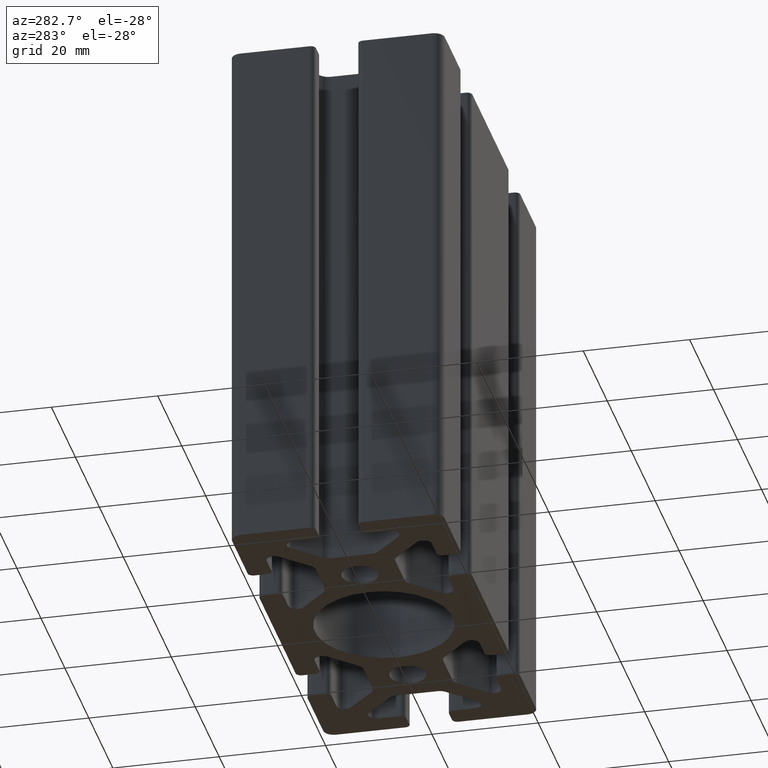
[diagram: clean part render]
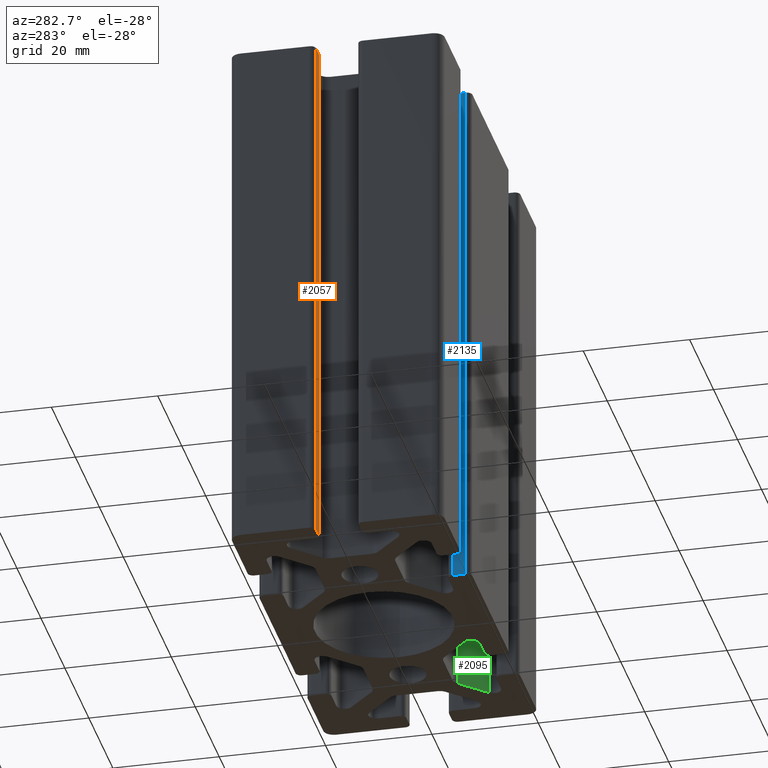
[diagram: same view with three faces highlighted in distinct colors, each labeled with its STEP entity id]
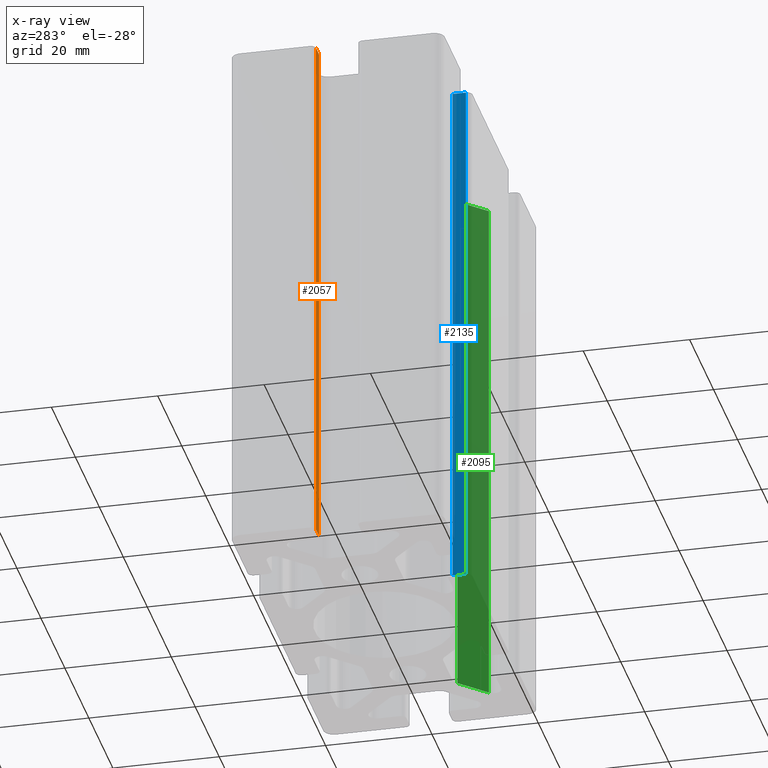
[diagram: x-ray of the same camera — body ghosted, the three highlighted faces saturated]
A machine part, auxiliary view with three faces highlighted in distinct colors.
The next image is the same camera in x-ray (body ghosted, the three faces saturated) — at least one of them is partly hidden behind the body in this view.
Their STEP definitions:

[orange] entity #2057 — the highlighted planar face has unit normal (0, 1, 0).
#15=LINE('',#3051,#223);
#16=LINE('',#3053,#224);
#17=LINE('',#3055,#225);
#18=LINE('',#3056,#226);
#223=VECTOR('',#2406,2.50000000000002);
#224=VECTOR('',#2407,100.);
#225=VECTOR('',#2408,2.50000000000002);
#226=VECTOR('',#2409,100.);
#431=PLANE('',#2174);
#497=FACE_OUTER_BOUND('',#609,.T.);
#609=EDGE_LOOP('',(#1369,#1370,#1371,#1372));
#837=VERTEX_POINT('',#3049);
#838=VERTEX_POINT('',#3050);
#839=VERTEX_POINT('',#3052);
#840=VERTEX_POINT('',#3054);
#1051=EDGE_CURVE('',#837,#838,#15,.T.);
#1052=EDGE_CURVE('',#839,#837,#16,.T.);
#1053=EDGE_CURVE('',#840,#839,#17,.T.);
#1054=EDGE_CURVE('',#840,#838,#18,.T.);
#1369=ORIENTED_EDGE('',*,*,#1051,.F.);
#1370=ORIENTED_EDGE('',*,*,#1052,.F.);
#1371=ORIENTED_EDGE('',*,*,#1053,.F.);
#1372=ORIENTED_EDGE('',*,*,#1054,.T.);
#2057=ADVANCED_FACE('',(#497),#431,.F.);
#2174=AXIS2_PLACEMENT_3D('',#3048,#2404,#2405);
#2404=DIRECTION('center_axis',(0.,1.,0.));
#2405=DIRECTION('ref_axis',(-1.,0.,0.));
#2406=DIRECTION('',(1.,0.,0.));
#2407=DIRECTION('',(0.,0.,1.));
#2408=DIRECTION('',(-1.,0.,0.));
#2409=DIRECTION('',(0.,0.,1.));
#3048=CARTESIAN_POINT('Origin',(-36.5,4.,0.));
#3049=CARTESIAN_POINT('',(-39.,4.,100.));
#3050=CARTESIAN_POINT('',(-36.5,4.,100.));
#3051=CARTESIAN_POINT('',(-18.25,4.,100.));
#3052=CARTESIAN_POINT('',(-39.,4.,0.));
#3053=CARTESIAN_POINT('',(-39.,4.,0.));
#3054=CARTESIAN_POINT('',(-36.5,4.,0.));
#3055=CARTESIAN_POINT('',(-18.25,4.,0.));
#3056=CARTESIAN_POINT('',(-36.5,4.,0.));

[blue] entity #2135 — the highlighted planar face has unit normal (1, -0, 0).
#170=LINE('',#3533,#378);
#172=LINE('',#3539,#380);
#173=LINE('',#3541,#381);
#174=LINE('',#3542,#382);
#378=VECTOR('',#2881,100.);
#380=VECTOR('',#2887,2.5);
#381=VECTOR('',#2888,100.);
#382=VECTOR('',#2889,2.5);
#467=PLANE('',#2336);
#575=FACE_OUTER_BOUND('',#687,.T.);
#687=EDGE_LOOP('',(#1681,#1682,#1683,#1684));
#1003=VERTEX_POINT('',#3529);
#1005=VERTEX_POINT('',#3532);
#1007=VERTEX_POINT('',#3538);
#1008=VERTEX_POINT('',#3540);
#1289=EDGE_CURVE('',#1005,#1003,#170,.T.);
#1292=EDGE_CURVE('',#1007,#1003,#172,.T.);
#1293=EDGE_CURVE('',#1008,#1007,#173,.T.);
#1294=EDGE_CURVE('',#1005,#1008,#174,.T.);
#1681=ORIENTED_EDGE('',*,*,#1292,.F.);
#1682=ORIENTED_EDGE('',*,*,#1293,.F.);
#1683=ORIENTED_EDGE('',*,*,#1294,.F.);
#1684=ORIENTED_EDGE('',*,*,#1289,.T.);
#2135=ADVANCED_FACE('',(#575),#467,.F.);
#2336=AXIS2_PLACEMENT_3D('',#3537,#2885,#2886);
#2881=DIRECTION('',(0.,0.,1.));
#2885=DIRECTION('center_axis',(1.,-3.5527136788005E-15,0.));
#2886=DIRECTION('ref_axis',(3.5527136788005E-15,1.,0.));
#2887=DIRECTION('',(-3.5527136788005E-15,-1.,0.));
#2888=DIRECTION('',(0.,0.,1.));
#2889=DIRECTION('',(3.5527136788005E-15,1.,0.));
#3529=CARTESIAN_POINT('',(-16.,-19.,100.));
#3532=CARTESIAN_POINT('',(-16.,-19.,0.));
#3533=CARTESIAN_POINT('',(-16.,-19.,0.));
#3537=CARTESIAN_POINT('Origin',(-16.,-19.,0.));
#3538=CARTESIAN_POINT('',(-16.,-16.5,100.));
#3539=CARTESIAN_POINT('',(-16.,-9.49999999999997,100.));
#3540=CARTESIAN_POINT('',(-16.,-16.5,0.));
#3541=CARTESIAN_POINT('',(-16.,-16.5,0.));
#3542=CARTESIAN_POINT('',(-16.,-9.49999999999997,0.));

[green] entity #2095 — the highlighted planar face has unit normal (0.7071, 0.7071, 0).
#91=LINE('',#3284,#299);
#92=LINE('',#3287,#300);
#93=LINE('',#3289,#301);
#94=LINE('',#3290,#302);
#299=VECTOR('',#2636,100.);
#300=VECTOR('',#2639,6.86396103067892);
#301=VECTOR('',#2640,6.86396103067892);
#302=VECTOR('',#2641,100.);
#449=PLANE('',#2252);
#535=FACE_OUTER_BOUND('',#647,.T.);
#647=EDGE_LOOP('',(#1521,#1522,#1523,#1524));
#917=VERTEX_POINT('',#3280);
#918=VERTEX_POINT('',#3282);
#919=VERTEX_POINT('',#3286);
#920=VERTEX_POINT('',#3288);
#1167=EDGE_CURVE('',#918,#917,#91,.T.);
#1168=EDGE_CURVE('',#917,#919,#92,.T.);
#1169=EDGE_CURVE('',#920,#918,#93,.T.);
#1170=EDGE_CURVE('',#920,#919,#94,.T.);
#1521=ORIENTED_EDGE('',*,*,#1168,.F.);
#1522=ORIENTED_EDGE('',*,*,#1167,.F.);
#1523=ORIENTED_EDGE('',*,*,#1169,.F.);
#1524=ORIENTED_EDGE('',*,*,#1170,.T.);
#2095=ADVANCED_FACE('',(#535),#449,.F.);
#2252=AXIS2_PLACEMENT_3D('',#3285,#2637,#2638);
#2636=DIRECTION('',(0.,0.,1.));
#2637=DIRECTION('center_axis',(0.707106781186549,0.707106781186546,0.));
#2638=DIRECTION('ref_axis',(-0.707106781186546,0.707106781186549,0.));
#2639=DIRECTION('',(0.707106781186546,-0.707106781186549,0.));
#2640=DIRECTION('',(-0.707106781186546,0.707106781186549,0.));
#2641=DIRECTION('',(0.,0.,1.));
#3280=CARTESIAN_POINT('',(25.2573593128807,-8.08578643762691,100.));
#3282=CARTESIAN_POINT('',(25.2573593128807,-8.08578643762691,0.));
#3284=CARTESIAN_POINT('',(25.2573593128807,-8.08578643762691,0.));
#3285=CARTESIAN_POINT('Origin',(30.110912703474,-12.9393398282202,0.));
#3286=CARTESIAN_POINT('',(30.110912703474,-12.9393398282202,100.));
#3287=CARTESIAN_POINT('',(19.3483495705505,-2.17677669529663,100.));
#3288=CARTESIAN_POINT('',(30.110912703474,-12.9393398282202,0.));
#3289=CARTESIAN_POINT('',(19.3483495705505,-2.17677669529663,0.));
#3290=CARTESIAN_POINT('',(30.110912703474,-12.9393398282202,0.));